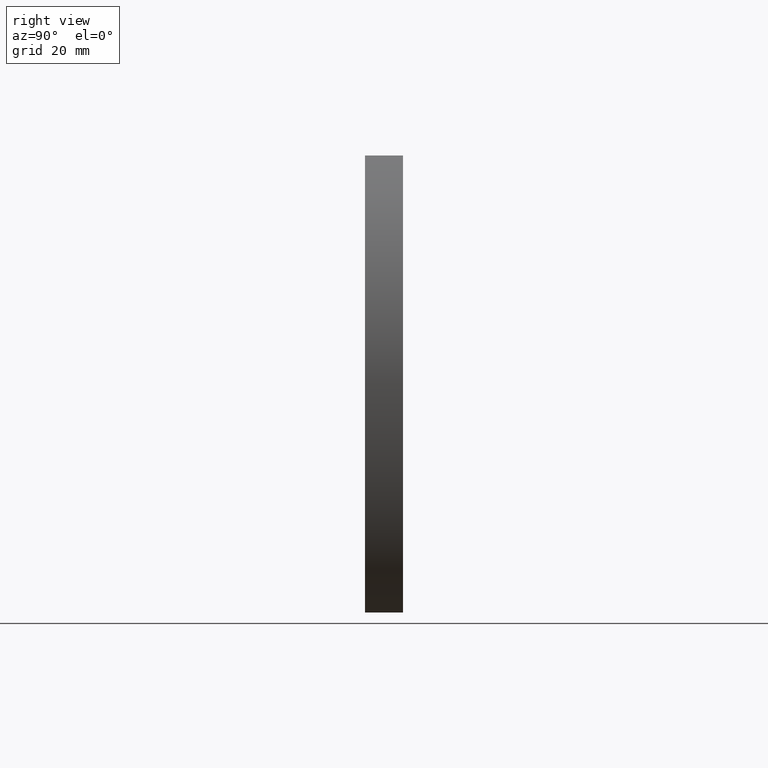
[diagram: clean part render]
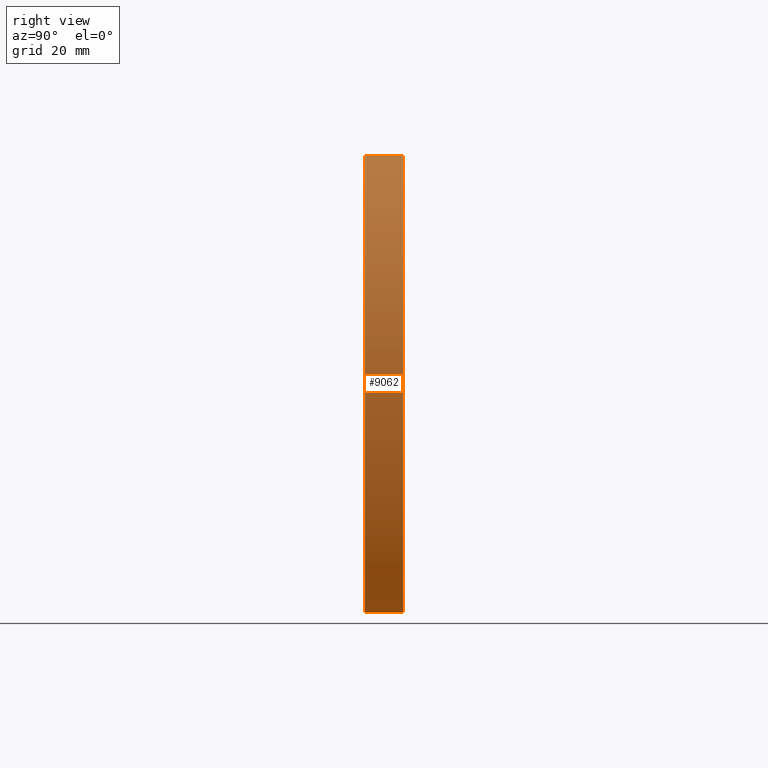
[diagram: same view with one face highlighted and labeled with its STEP entity id]
A machine part, right view. The second image highlights one B-rep face of the part: STEP entity #9062.
In plain terms, the highlighted cylindrical surface (partial cylindrical patch) has radius 94.4709 mm, axis along (-0, -1, -0).
Its self-contained STEP definition (entity closure, byte-faithful):
#483 = DIRECTION ( 'NONE',  ( 0.0000000000000000000, 0.0000000000000000000, -1.000000000000000000 ) ) ;
#516 = ORIENTED_EDGE ( 'NONE', *, *, #9243, .F. ) ;
#948 = AXIS2_PLACEMENT_3D ( 'NONE', #4262, #7350, #1109 ) ;
#1090 = AXIS2_PLACEMENT_3D ( 'NONE', #5611, #3417, #2649 ) ;
#1109 = DIRECTION ( 'NONE',  ( 0.0000000000000000000, 0.0000000000000000000, -1.000000000000000000 ) ) ;
#2649 = DIRECTION ( 'NONE',  ( 0.0000000000000000000, 0.0000000000000000000, -1.000000000000000000 ) ) ;
#2887 = VERTEX_POINT ( 'NONE', #8788 ) ;
#3192 = LINE ( 'NONE', #4441, #7931 ) ;
#3417 = DIRECTION ( 'NONE',  ( 0.0000000000000000000, 1.000000000000000000, -0.0000000000000000000 ) ) ;
#3789 = LINE ( 'NONE', #9652, #8399 ) ;
#4008 = CARTESIAN_POINT ( 'NONE',  ( 53.50000000000000700, 0.0000000000000000000, -60.00000000000000000 ) ) ;
#4024 = CIRCLE ( 'NONE', #1090, 94.47093023255816000 ) ;
#4114 = AXIS2_PLACEMENT_3D ( 'NONE', #9846, #5264, #483 ) ;
#4262 = CARTESIAN_POINT ( 'NONE',  ( -19.47093023255816400, 10.00000000000000000, 0.0000000000000000000 ) ) ;
#4356 = DIRECTION ( 'NONE',  ( -0.0000000000000000000, -1.000000000000000000, -0.0000000000000000000 ) ) ;
#4441 = CARTESIAN_POINT ( 'NONE',  ( 53.50000000000000700, 10.00000000000000000, 60.00000000000000000 ) ) ;
#4446 = ORIENTED_EDGE ( 'NONE', *, *, #7517, .T. ) ;
#5009 = ORIENTED_EDGE ( 'NONE', *, *, #9084, .F. ) ;
#5089 = FACE_OUTER_BOUND ( 'NONE', #6463, .T. ) ;
#5264 = DIRECTION ( 'NONE',  ( 0.0000000000000000000, 1.000000000000000000, -0.0000000000000000000 ) ) ;
#5288 = VERTEX_POINT ( 'NONE', #4008 ) ;
#5299 = ORIENTED_EDGE ( 'NONE', *, *, #8946, .T. ) ;
#5611 = CARTESIAN_POINT ( 'NONE',  ( -19.47093023255816400, 0.0000000000000000000, 0.0000000000000000000 ) ) ;
#6463 = EDGE_LOOP ( 'NONE', ( #5299, #5009, #516, #4446 ) ) ;
#6715 = DIRECTION ( 'NONE',  ( -0.0000000000000000000, -1.000000000000000000, -0.0000000000000000000 ) ) ;
#7350 = DIRECTION ( 'NONE',  ( -0.0000000000000000000, -1.000000000000000000, -0.0000000000000000000 ) ) ;
#7441 = CARTESIAN_POINT ( 'NONE',  ( 53.50000000000000700, 10.00000000000000000, 60.00000000000000000 ) ) ;
#7517 = EDGE_CURVE ( 'NONE', #8683, #9273, #3192, .T. ) ;
#7662 = CARTESIAN_POINT ( 'NONE',  ( 53.50000000000000700, 0.0000000000000000000, 60.00000000000000000 ) ) ;
#7931 = VECTOR ( 'NONE', #6715, 1000.000000000000000 ) ;
#8284 = CIRCLE ( 'NONE', #4114, 94.47093023255816000 ) ;
#8399 = VECTOR ( 'NONE', #4356, 1000.000000000000000 ) ;
#8683 = VERTEX_POINT ( 'NONE', #7441 ) ;
#8788 = CARTESIAN_POINT ( 'NONE',  ( 53.50000000000000700, 10.00000000000000000, -60.00000000000000000 ) ) ;
#8862 = CYLINDRICAL_SURFACE ( 'NONE', #948, 94.47093023255816000 ) ;
#8946 = EDGE_CURVE ( 'NONE', #9273, #5288, #4024, .T. ) ;
#9062 = ADVANCED_FACE ( 'NONE', ( #5089 ), #8862, .T. ) ;
#9084 = EDGE_CURVE ( 'NONE', #2887, #5288, #3789, .T. ) ;
#9243 = EDGE_CURVE ( 'NONE', #8683, #2887, #8284, .T. ) ;
#9273 = VERTEX_POINT ( 'NONE', #7662 ) ;
#9652 = CARTESIAN_POINT ( 'NONE',  ( 53.50000000000000700, 10.00000000000000000, -60.00000000000000000 ) ) ;
#9846 = CARTESIAN_POINT ( 'NONE',  ( -19.47093023255816400, 10.00000000000000000, 0.0000000000000000000 ) ) ;